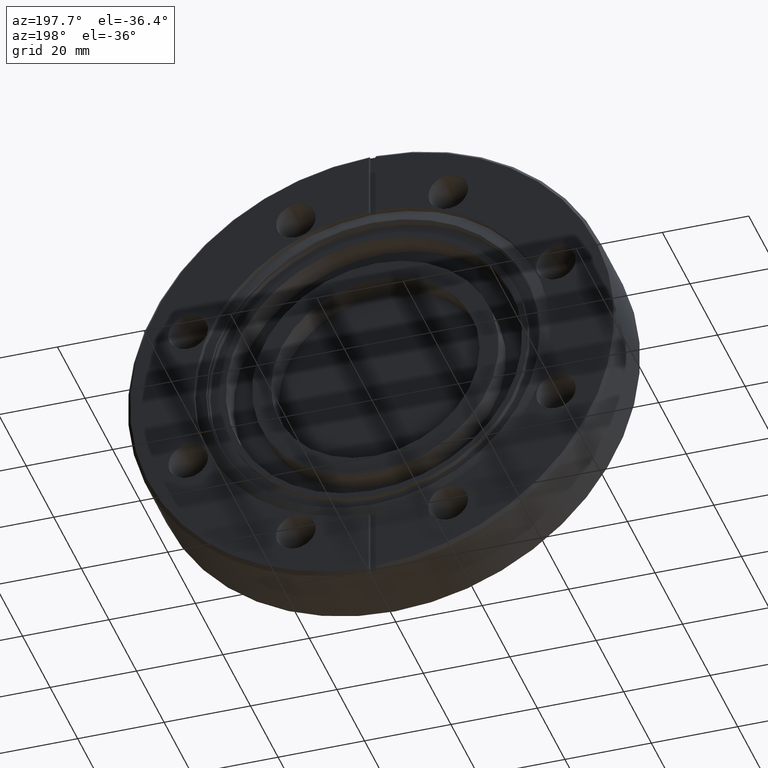
[diagram: clean part render]
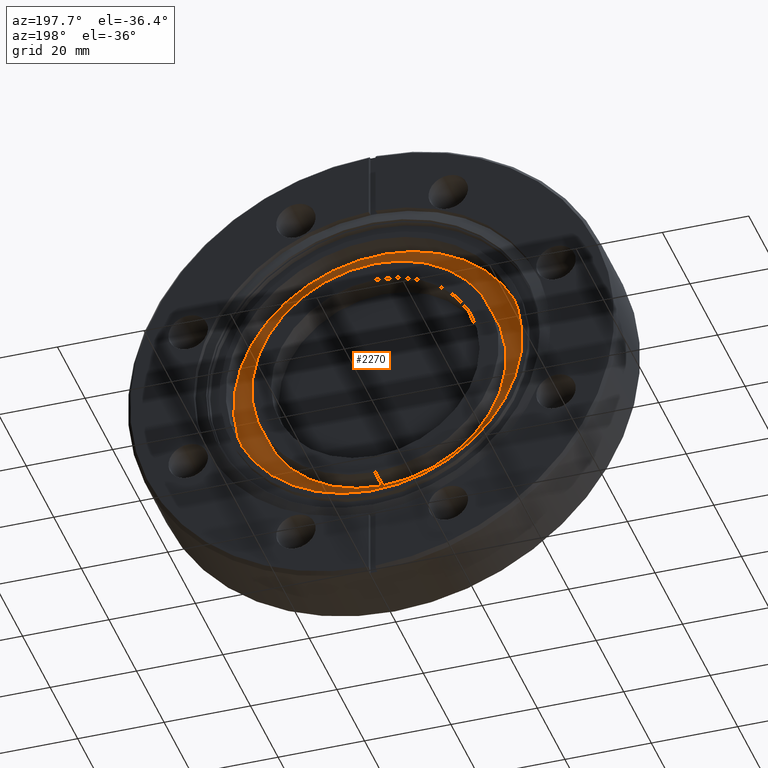
[diagram: same view with one face highlighted and labeled with its STEP entity id]
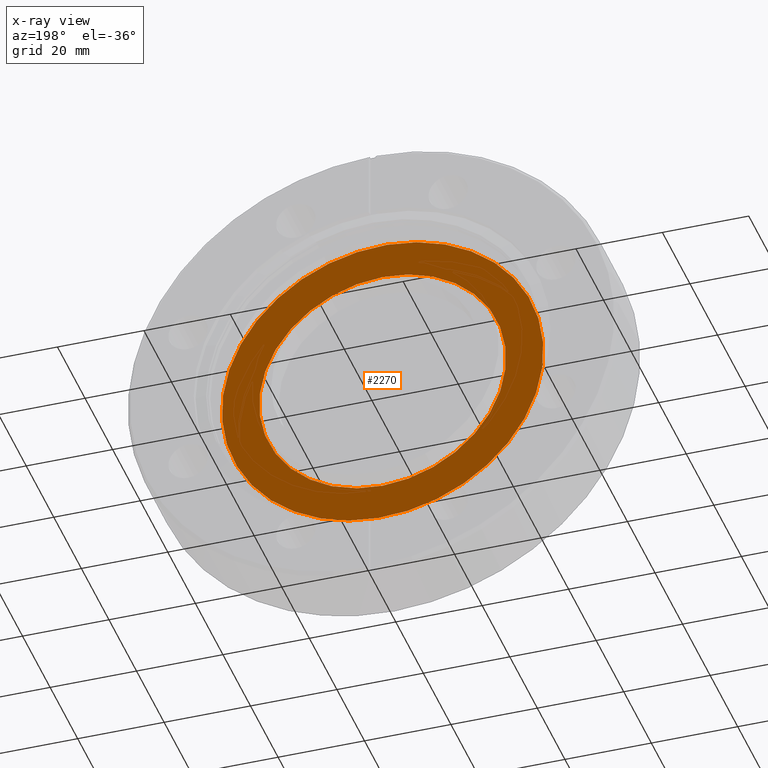
[diagram: x-ray of the same camera — body ghosted, the highlighted face saturated]
A machine part, auxiliary view. The second image highlights one B-rep face of the part: STEP entity #2270.
The next image is the same camera in x-ray: the body ghosted, the highlighted face saturated — about 0% of this face is hidden behind the body in this view.
In plain terms, the highlighted planar face has unit normal (0, 1, 0).
Its self-contained STEP definition (entity closure, byte-faithful):
#53 = CARTESIAN_POINT ( 'NONE',  ( 0.0000000000000000000, 0.3750000000000002200, -1.125000000000000000 ) ) ;
#208 = EDGE_LOOP ( 'NONE', ( #2383, #2515 ) ) ;
#286 = CARTESIAN_POINT ( 'NONE',  ( 1.561251128379111600E-018, 0.3750000000000002200, 1.332267629550189500E-017 ) ) ;
#291 = DIRECTION ( 'NONE',  ( -0.0000000000000000000, -1.000000000000000000, -0.0000000000000000000 ) ) ;
#555 = CIRCLE ( 'NONE', #660, 1.465000000000000300 ) ;
#604 = AXIS2_PLACEMENT_3D ( 'NONE', #2582, #2581, #2579 ) ;
#648 = CIRCLE ( 'NONE', #604, 1.125000000000000000 ) ;
#660 = AXIS2_PLACEMENT_3D ( 'NONE', #286, #291, #2023 ) ;
#920 = ORIENTED_EDGE ( 'NONE', *, *, #2277, .T. ) ;
#945 = VERTEX_POINT ( 'NONE', #53 ) ;
#1040 = VERTEX_POINT ( 'NONE', #1853 ) ;
#1042 = VERTEX_POINT ( 'NONE', #1866 ) ;
#1130 = VERTEX_POINT ( 'NONE', #1808 ) ;
#1521 = DIRECTION ( 'NONE',  ( 0.0000000000000000000, 0.0000000000000000000, -1.000000000000000000 ) ) ;
#1522 = DIRECTION ( 'NONE',  ( -0.0000000000000000000, -1.000000000000000000, -0.0000000000000000000 ) ) ;
#1526 = CARTESIAN_POINT ( 'NONE',  ( 0.0000000000000000000, 0.3750000000000002200, 0.0000000000000000000 ) ) ;
#1598 = DIRECTION ( 'NONE',  ( 0.0000000000000000000, -0.0000000000000000000, 1.000000000000000000 ) ) ;
#1599 = DIRECTION ( 'NONE',  ( 0.0000000000000000000, 1.000000000000000000, 0.0000000000000000000 ) ) ;
#1612 = DIRECTION ( 'NONE',  ( 0.0000000000000000000, 0.0000000000000000000, 1.000000000000000000 ) ) ;
#1613 = PLANE ( 'NONE',  #2186 ) ;
#1614 = DIRECTION ( 'NONE',  ( -0.0000000000000000000, -1.000000000000000000, -0.0000000000000000000 ) ) ;
#1615 = CARTESIAN_POINT ( 'NONE',  ( 1.561251128379111600E-018, 0.3750000000000002200, 1.332267629550189500E-017 ) ) ;
#1631 = FACE_OUTER_BOUND ( 'NONE', #208, .T. ) ;
#1651 = CARTESIAN_POINT ( 'NONE',  ( 1.125000000000000000, 0.3750000000000002200, 0.0000000000000000000 ) ) ;
#1652 = FACE_BOUND ( 'NONE', #2561, .T. ) ;
#1808 = CARTESIAN_POINT ( 'NONE',  ( -1.397560670334800000, 0.3750000000000002200, -0.4393736140613650500 ) ) ;
#1853 = CARTESIAN_POINT ( 'NONE',  ( 1.397560670334800000, 0.3750000000000002200, 0.4393736140613648800 ) ) ;
#1866 = CARTESIAN_POINT ( 'NONE',  ( 1.377727649040772400E-016, 0.3750000000000002200, 1.125000000000000000 ) ) ;
#2023 = DIRECTION ( 'NONE',  ( 0.0000000000000000000, 0.0000000000000000000, 1.000000000000000000 ) ) ;
#2135 = CIRCLE ( 'NONE', #2163, 1.125000000000000000 ) ;
#2163 = AXIS2_PLACEMENT_3D ( 'NONE', #1526, #1522, #1521 ) ;
#2186 = AXIS2_PLACEMENT_3D ( 'NONE', #1651, #1599, #1598 ) ;
#2196 = AXIS2_PLACEMENT_3D ( 'NONE', #1615, #1614, #1612 ) ;
#2205 = CIRCLE ( 'NONE', #2196, 1.465000000000000300 ) ;
#2230 = EDGE_CURVE ( 'NONE', #945, #1042, #648, .T. ) ;
#2236 = EDGE_CURVE ( 'NONE', #1130, #1040, #555, .T. ) ;
#2269 = EDGE_CURVE ( 'NONE', #1040, #1130, #2205, .T. ) ;
#2270 = ADVANCED_FACE ( 'NONE', ( #1631, #1652 ), #1613, .T. ) ;
#2277 = EDGE_CURVE ( 'NONE', #1042, #945, #2135, .T. ) ;
#2334 = ORIENTED_EDGE ( 'NONE', *, *, #2230, .T. ) ;
#2383 = ORIENTED_EDGE ( 'NONE', *, *, #2269, .F. ) ;
#2515 = ORIENTED_EDGE ( 'NONE', *, *, #2236, .F. ) ;
#2561 = EDGE_LOOP ( 'NONE', ( #2334, #920 ) ) ;
#2579 = DIRECTION ( 'NONE',  ( 0.0000000000000000000, 0.0000000000000000000, -1.000000000000000000 ) ) ;
#2581 = DIRECTION ( 'NONE',  ( -0.0000000000000000000, -1.000000000000000000, -0.0000000000000000000 ) ) ;
#2582 = CARTESIAN_POINT ( 'NONE',  ( 0.0000000000000000000, 0.3750000000000002200, 0.0000000000000000000 ) ) ;